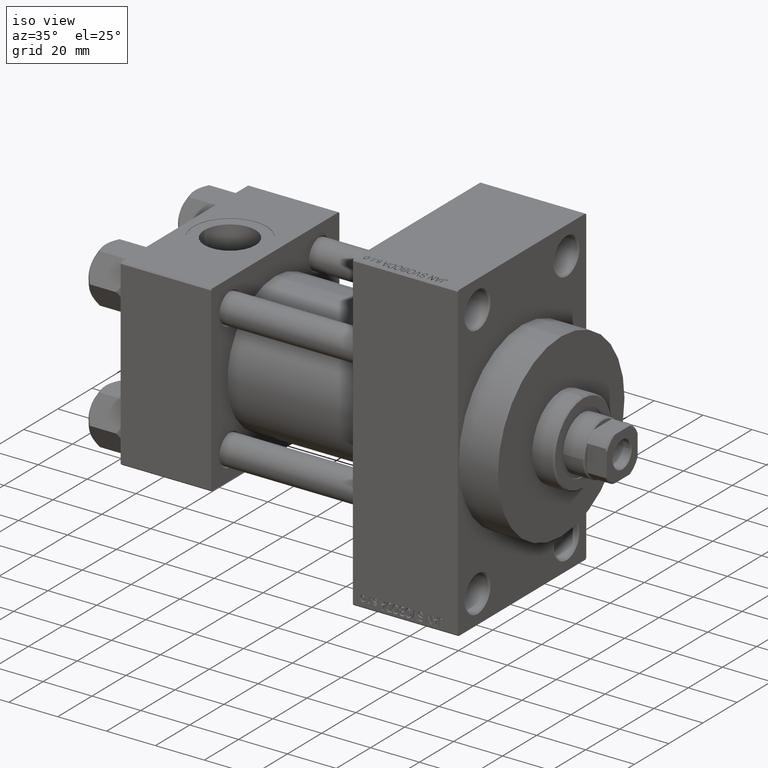
[diagram: clean part render]
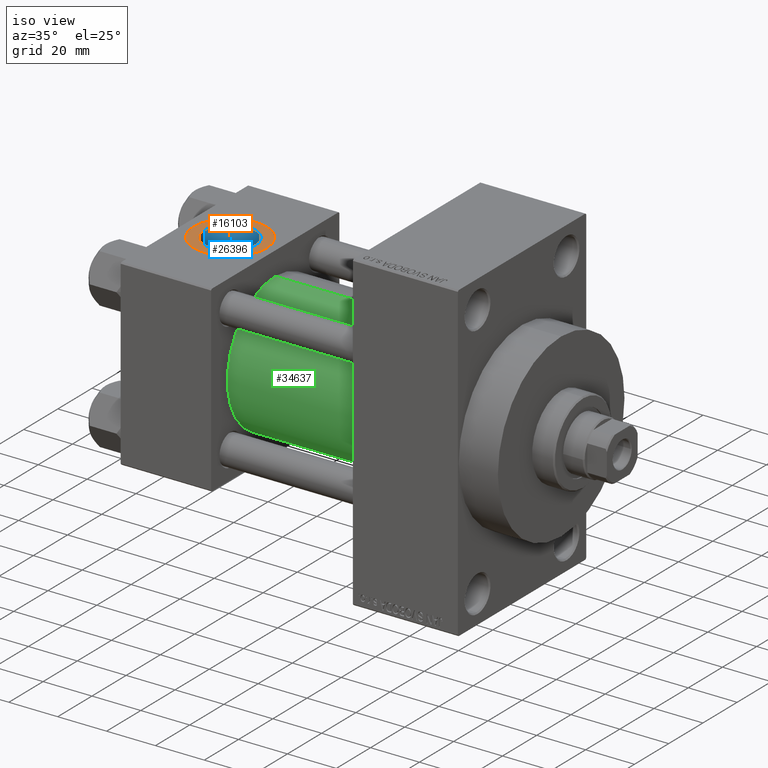
[diagram: same view with three faces highlighted in distinct colors, each labeled with its STEP entity id]
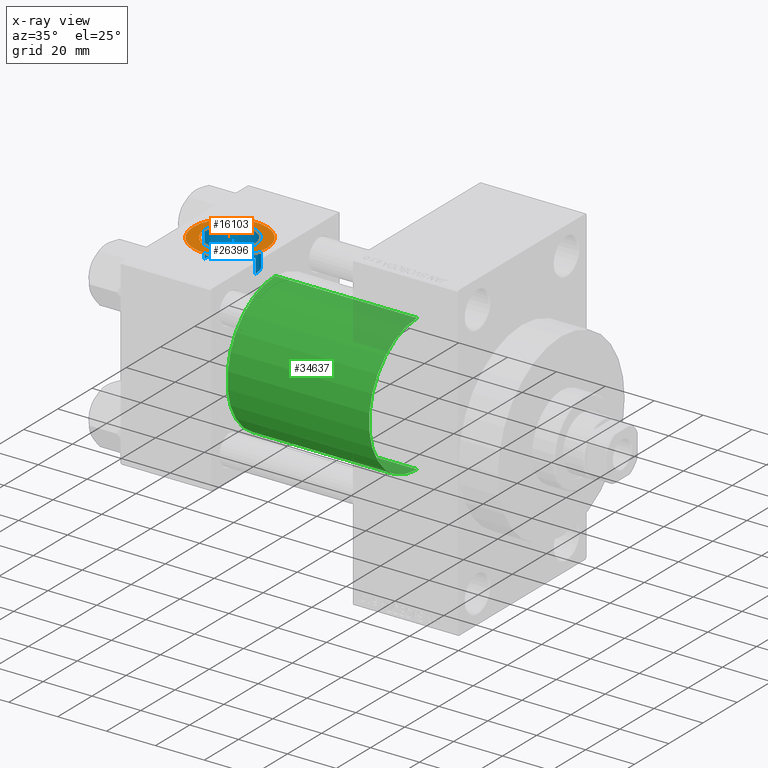
[diagram: x-ray of the same camera — body ghosted, the three highlighted faces saturated]
A machine part, iso view with three faces highlighted in distinct colors.
The next image is the same camera in x-ray (body ghosted, the three faces saturated) — at least one of them is partly hidden behind the body in this view.
Their STEP definitions:

[orange] entity #16103 — the highlighted planar face has unit normal (0, 0, 1).
#40 = EDGE_LOOP ( 'NONE', ( #35934, #2628 ) ) ;
#419 = CIRCLE ( 'NONE', #46144, 15.00000000000000355 ) ;
#1759 = CIRCLE ( 'NONE', #25354, 15.00000000000000355 ) ;
#2525 = DIRECTION ( 'NONE',  ( 0.000000000000000000, 0.000000000000000000, 1.000000000000000000 ) ) ;
#2628 = ORIENTED_EDGE ( 'NONE', *, *, #36601, .F. ) ;
#2649 = DIRECTION ( 'NONE',  ( 1.000000000000000000, 0.000000000000000000, 0.000000000000000000 ) ) ;
#4843 = AXIS2_PLACEMENT_3D ( 'NONE', #30952, #45300, #12132 ) ;
#5428 = CARTESIAN_POINT ( 'NONE',  ( 33.50000000000000000, -5.204170427930421283E-15, 37.29999999999999716 ) ) ;
#5836 = CIRCLE ( 'NONE', #13474, 10.48000000000000043 ) ;
#7568 = CARTESIAN_POINT ( 'NONE',  ( 18.50000000000000000, -5.204170427930421283E-15, 37.29999999999999716 ) ) ;
#8201 = VERTEX_POINT ( 'NONE', #10324 ) ;
#8784 = PLANE ( 'NONE',  #4843 ) ;
#9115 = CARTESIAN_POINT ( 'NONE',  ( 18.50000000000000000, -5.204170427930421283E-15, 37.29999999999999716 ) ) ;
#10324 = CARTESIAN_POINT ( 'NONE',  ( 3.499999999999997780, -3.367200229209391300E-15, 37.29999999999999716 ) ) ;
#10928 = DIRECTION ( 'NONE',  ( 0.000000000000000000, 0.000000000000000000, 1.000000000000000000 ) ) ;
#10959 = DIRECTION ( 'NONE',  ( 0.000000000000000000, 0.000000000000000000, 1.000000000000000000 ) ) ;
#12132 = DIRECTION ( 'NONE',  ( 1.000000000000000000, 0.000000000000000000, -0.000000000000000000 ) ) ;
#12166 = VERTEX_POINT ( 'NONE', #28070 ) ;
#12836 = FACE_OUTER_BOUND ( 'NONE', #19035, .T. ) ;
#13040 = CARTESIAN_POINT ( 'NONE',  ( 18.50000000000000000, -5.204170427930421283E-15, 37.29999999999999716 ) ) ;
#13347 = EDGE_CURVE ( 'NONE', #26036, #8201, #1759, .T. ) ;
#13474 = AXIS2_PLACEMENT_3D ( 'NONE', #9115, #20774, #2649 ) ;
#14721 = ORIENTED_EDGE ( 'NONE', *, *, #13347, .T. ) ;
#16103 = ADVANCED_FACE ( 'NONE', ( #16629, #12836 ), #8784, .T. ) ;
#16629 = FACE_BOUND ( 'NONE', #40, .T. ) ;
#17706 = CARTESIAN_POINT ( 'NONE',  ( 8.019999999999999574, -3.920740582423995006E-15, 37.29999999999999716 ) ) ;
#19035 = EDGE_LOOP ( 'NONE', ( #14721, #27905 ) ) ;
#20190 = EDGE_CURVE ( 'NONE', #8201, #26036, #419, .T. ) ;
#20774 = DIRECTION ( 'NONE',  ( 0.000000000000000000, 0.000000000000000000, 1.000000000000000000 ) ) ;
#22054 = EDGE_CURVE ( 'NONE', #12166, #46307, #5836, .T. ) ;
#25354 = AXIS2_PLACEMENT_3D ( 'NONE', #13040, #2525, #39045 ) ;
#26036 = VERTEX_POINT ( 'NONE', #5428 ) ;
#27905 = ORIENTED_EDGE ( 'NONE', *, *, #20190, .T. ) ;
#28070 = CARTESIAN_POINT ( 'NONE',  ( 28.98000000000000043, -5.204170427930421283E-15, 37.29999999999999716 ) ) ;
#29807 = CIRCLE ( 'NONE', #41640, 10.48000000000000043 ) ;
#30952 = CARTESIAN_POINT ( 'NONE',  ( 18.50000000000000000, -5.204170427930421283E-15, 37.29999999999999716 ) ) ;
#32633 = DIRECTION ( 'NONE',  ( 1.000000000000000000, 0.000000000000000000, 0.000000000000000000 ) ) ;
#35934 = ORIENTED_EDGE ( 'NONE', *, *, #22054, .F. ) ;
#36601 = EDGE_CURVE ( 'NONE', #46307, #12166, #29807, .T. ) ;
#39045 = DIRECTION ( 'NONE',  ( 1.000000000000000000, 0.000000000000000000, 0.000000000000000000 ) ) ;
#40060 = DIRECTION ( 'NONE',  ( 1.000000000000000000, 0.000000000000000000, 0.000000000000000000 ) ) ;
#40762 = CARTESIAN_POINT ( 'NONE',  ( 18.50000000000000000, -5.204170427930421283E-15, 37.29999999999999716 ) ) ;
#41640 = AXIS2_PLACEMENT_3D ( 'NONE', #7568, #10928, #32633 ) ;
#45300 = DIRECTION ( 'NONE',  ( 0.000000000000000000, 0.000000000000000000, 1.000000000000000000 ) ) ;
#46144 = AXIS2_PLACEMENT_3D ( 'NONE', #40762, #10959, #40060 ) ;
#46307 = VERTEX_POINT ( 'NONE', #17706 ) ;

[blue] entity #26396 — the highlighted cylindrical surface (edge-blend (fillet) strip) has radius 10.48 mm, axis along (0, 0, 1).
#408 = EDGE_CURVE ( 'NONE', #28322, #12166, #8871, .T. ) ;
#1053 = EDGE_LOOP ( 'NONE', ( #37380, #40147, #5155, #45799 ) ) ;
#2649 = DIRECTION ( 'NONE',  ( 1.000000000000000000, 0.000000000000000000, 0.000000000000000000 ) ) ;
#2884 = AXIS2_PLACEMENT_3D ( 'NONE', #42337, #13007, #20853 ) ;
#5155 = ORIENTED_EDGE ( 'NONE', *, *, #408, .T. ) ;
#5836 = CIRCLE ( 'NONE', #13474, 10.48000000000000043 ) ;
#6068 = CYLINDRICAL_SURFACE ( 'NONE', #2884, 10.48000000000000043 ) ;
#7792 = DIRECTION ( 'NONE',  ( -0.000000000000000000, -0.000000000000000000, 1.000000000000000000 ) ) ;
#8871 = LINE ( 'NONE', #45621, #38758 ) ;
#9115 = CARTESIAN_POINT ( 'NONE',  ( 18.50000000000000000, -5.204170427930421283E-15, 37.29999999999999716 ) ) ;
#12166 = VERTEX_POINT ( 'NONE', #28070 ) ;
#12851 = AXIS2_PLACEMENT_3D ( 'NONE', #22079, #36660, #23951 ) ;
#13007 = DIRECTION ( 'NONE',  ( -0.000000000000000000, -0.000000000000000000, 1.000000000000000000 ) ) ;
#13474 = AXIS2_PLACEMENT_3D ( 'NONE', #9115, #20774, #2649 ) ;
#16009 = VECTOR ( 'NONE', #7792, 1000.000000000000000 ) ;
#17706 = CARTESIAN_POINT ( 'NONE',  ( 8.019999999999999574, -3.920740582423995006E-15, 37.29999999999999716 ) ) ;
#20774 = DIRECTION ( 'NONE',  ( 0.000000000000000000, 0.000000000000000000, 1.000000000000000000 ) ) ;
#20853 = DIRECTION ( 'NONE',  ( 1.000000000000000000, 0.000000000000000000, 0.000000000000000000 ) ) ;
#21852 = LINE ( 'NONE', #40708, #16009 ) ;
#22054 = EDGE_CURVE ( 'NONE', #12166, #46307, #5836, .T. ) ;
#22079 = CARTESIAN_POINT ( 'NONE',  ( 18.50000000000000000, -5.204170427930421283E-15, 26.69999999999999929 ) ) ;
#23735 = FACE_OUTER_BOUND ( 'NONE', #1053, .T. ) ;
#23748 = CARTESIAN_POINT ( 'NONE',  ( 28.98000000000000043, -5.204170427930421283E-15, 26.69999999999999929 ) ) ;
#23876 = DIRECTION ( 'NONE',  ( -0.000000000000000000, -0.000000000000000000, 1.000000000000000000 ) ) ;
#23951 = DIRECTION ( 'NONE',  ( 1.000000000000000000, 0.000000000000000000, 0.000000000000000000 ) ) ;
#26396 = ADVANCED_FACE ( 'NONE', ( #23735 ), #6068, .F. ) ;
#28070 = CARTESIAN_POINT ( 'NONE',  ( 28.98000000000000043, -5.204170427930421283E-15, 37.29999999999999716 ) ) ;
#28322 = VERTEX_POINT ( 'NONE', #23748 ) ;
#29344 = CARTESIAN_POINT ( 'NONE',  ( 8.019999999999999574, -3.920740582423995006E-15, 26.69999999999999929 ) ) ;
#29921 = EDGE_CURVE ( 'NONE', #28322, #46789, #44879, .T. ) ;
#33174 = EDGE_CURVE ( 'NONE', #46789, #46307, #21852, .T. ) ;
#36660 = DIRECTION ( 'NONE',  ( 0.000000000000000000, 0.000000000000000000, 1.000000000000000000 ) ) ;
#37380 = ORIENTED_EDGE ( 'NONE', *, *, #33174, .F. ) ;
#38758 = VECTOR ( 'NONE', #23876, 1000.000000000000000 ) ;
#40147 = ORIENTED_EDGE ( 'NONE', *, *, #29921, .F. ) ;
#40708 = CARTESIAN_POINT ( 'NONE',  ( 8.019999999999999574, -3.920740582423995006E-15, 26.69999999999999929 ) ) ;
#42337 = CARTESIAN_POINT ( 'NONE',  ( 18.50000000000000000, -5.204170427930421283E-15, 26.69999999999999929 ) ) ;
#44879 = CIRCLE ( 'NONE', #12851, 10.48000000000000043 ) ;
#45621 = CARTESIAN_POINT ( 'NONE',  ( 28.98000000000000043, -5.204170427930421283E-15, 26.69999999999999929 ) ) ;
#45799 = ORIENTED_EDGE ( 'NONE', *, *, #22054, .T. ) ;
#46307 = VERTEX_POINT ( 'NONE', #17706 ) ;
#46789 = VERTEX_POINT ( 'NONE', #29344 ) ;

[green] entity #34637 — the highlighted cylindrical surface (partial cylindrical patch) has radius 28 mm, axis along (-1, -0, -0).
#31 = AXIS2_PLACEMENT_3D ( 'NONE', #21334, #6550, #24437 ) ;
#2795 = AXIS2_PLACEMENT_3D ( 'NONE', #29402, #18169, #3391 ) ;
#3391 = DIRECTION ( 'NONE',  ( 0.000000000000000000, 0.000000000000000000, 1.000000000000000000 ) ) ;
#5065 = LINE ( 'NONE', #5296, #14535 ) ;
#5296 = CARTESIAN_POINT ( 'NONE',  ( 95.00000000000000000, 8.269258236473776482E-16, -28.00000000000000000 ) ) ;
#5951 = EDGE_CURVE ( 'NONE', #24485, #44430, #5065, .T. ) ;
#6550 = DIRECTION ( 'NONE',  ( -1.000000000000000000, -0.000000000000000000, -0.000000000000000000 ) ) ;
#14535 = VECTOR ( 'NONE', #27013, 1000.000000000000000 ) ;
#17265 = CIRCLE ( 'NONE', #2795, 28.00000000000000000 ) ;
#18169 = DIRECTION ( 'NONE',  ( 1.000000000000000000, -0.000000000000000000, 0.000000000000000000 ) ) ;
#19207 = ORIENTED_EDGE ( 'NONE', *, *, #5951, .F. ) ;
#19485 = CARTESIAN_POINT ( 'NONE',  ( 95.00000000000000000, -2.602085213965210642E-15, 28.00000000000000000 ) ) ;
#19991 = VERTEX_POINT ( 'NONE', #43420 ) ;
#20948 = DIRECTION ( 'NONE',  ( 0.000000000000000000, 0.000000000000000000, -1.000000000000000000 ) ) ;
#21334 = CARTESIAN_POINT ( 'NONE',  ( 95.00000000000000000, -2.602085213965210642E-15, 0.000000000000000000 ) ) ;
#23178 = DIRECTION ( 'NONE',  ( 1.000000000000000000, 0.000000000000000000, 0.000000000000000000 ) ) ;
#23651 = CARTESIAN_POINT ( 'NONE',  ( 95.00000000000000000, -2.602085213965210642E-15, 0.000000000000000000 ) ) ;
#24224 = VECTOR ( 'NONE', #42812, 1000.000000000000000 ) ;
#24437 = DIRECTION ( 'NONE',  ( 0.000000000000000000, 0.000000000000000000, 1.000000000000000000 ) ) ;
#24485 = VERTEX_POINT ( 'NONE', #26710 ) ;
#24677 = FACE_OUTER_BOUND ( 'NONE', #24785, .T. ) ;
#24785 = EDGE_LOOP ( 'NONE', ( #19207, #37316, #31907, #43691 ) ) ;
#26710 = CARTESIAN_POINT ( 'NONE',  ( 95.00000000000000000, 8.269258236473776482E-16, -28.00000000000000000 ) ) ;
#27013 = DIRECTION ( 'NONE',  ( -1.000000000000000000, -0.000000000000000000, -0.000000000000000000 ) ) ;
#27294 = VERTEX_POINT ( 'NONE', #37902 ) ;
#28988 = EDGE_CURVE ( 'NONE', #19991, #27294, #44814, .T. ) ;
#29229 = CYLINDRICAL_SURFACE ( 'NONE', #31, 28.00000000000000000 ) ;
#29402 = CARTESIAN_POINT ( 'NONE',  ( 37.00000000000000000, -2.602085213965210642E-15, 0.000000000000000000 ) ) ;
#29873 = CIRCLE ( 'NONE', #32146, 28.00000000000000000 ) ;
#31907 = ORIENTED_EDGE ( 'NONE', *, *, #28988, .T. ) ;
#32146 = AXIS2_PLACEMENT_3D ( 'NONE', #23651, #23178, #20948 ) ;
#34637 = ADVANCED_FACE ( 'NONE', ( #24677 ), #29229, .T. ) ;
#37316 = ORIENTED_EDGE ( 'NONE', *, *, #41808, .F. ) ;
#37902 = CARTESIAN_POINT ( 'NONE',  ( 37.00000000000000000, -2.602085213965210642E-15, 28.00000000000000000 ) ) ;
#39458 = CARTESIAN_POINT ( 'NONE',  ( 37.00000000000000000, 8.269258236473776482E-16, -28.00000000000000000 ) ) ;
#41808 = EDGE_CURVE ( 'NONE', #19991, #24485, #29873, .T. ) ;
#42812 = DIRECTION ( 'NONE',  ( -1.000000000000000000, -0.000000000000000000, -0.000000000000000000 ) ) ;
#43420 = CARTESIAN_POINT ( 'NONE',  ( 95.00000000000000000, -2.602085213965210642E-15, 28.00000000000000000 ) ) ;
#43691 = ORIENTED_EDGE ( 'NONE', *, *, #46443, .T. ) ;
#44430 = VERTEX_POINT ( 'NONE', #39458 ) ;
#44814 = LINE ( 'NONE', #19485, #24224 ) ;
#46443 = EDGE_CURVE ( 'NONE', #27294, #44430, #17265, .T. ) ;